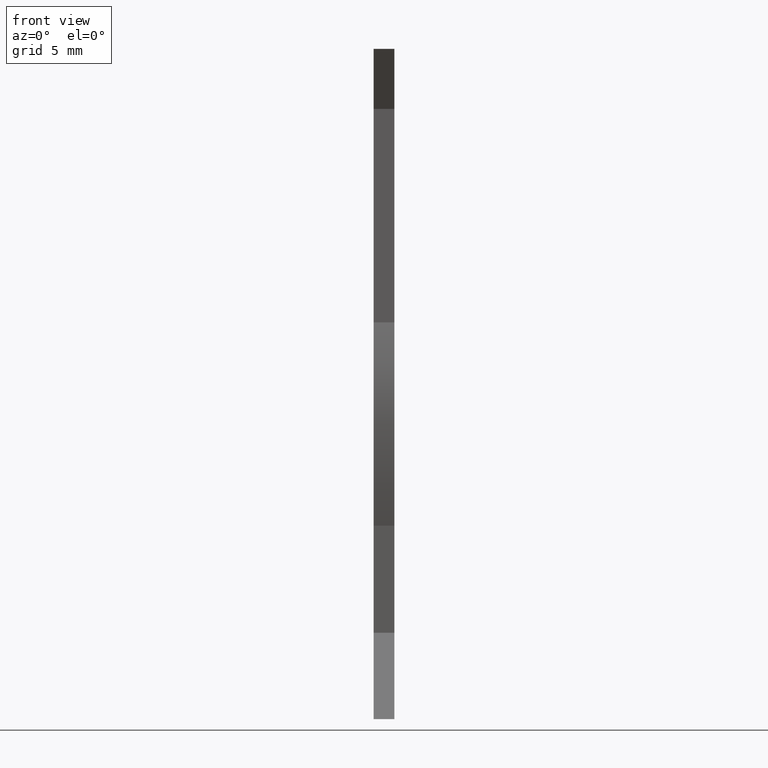
[diagram: clean part render]
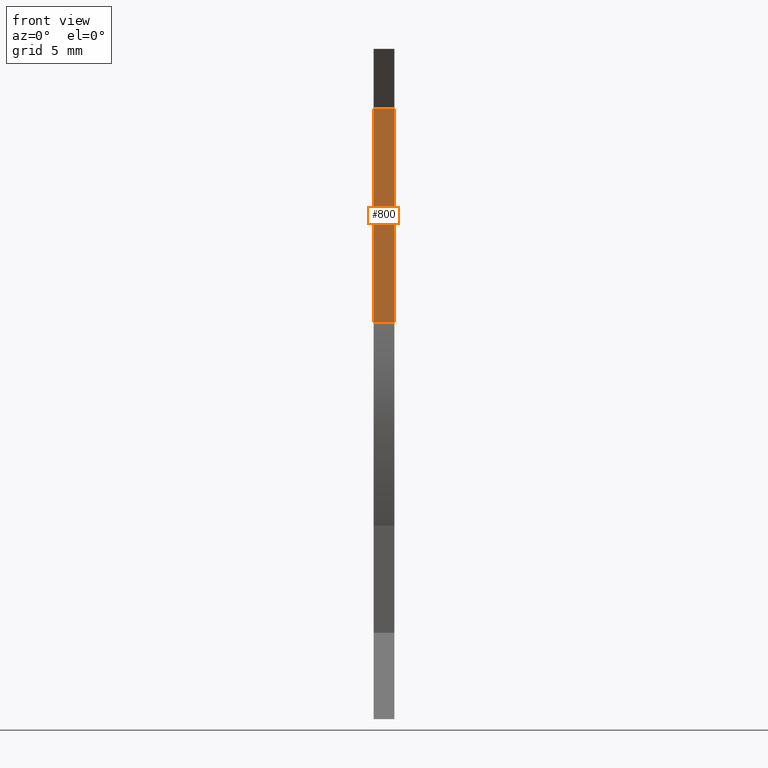
[diagram: same view with one face highlighted and labeled with its STEP entity id]
A machine part, front view. The second image highlights one B-rep face of the part: STEP entity #800.
In plain terms, the highlighted planar face has unit normal (0, -1, 0).
Its self-contained STEP definition (entity closure, byte-faithful):
#110=CARTESIAN_POINT('',(26.3821672216756,-22.3107957574434,54.17));
#120=VERTEX_POINT('',#110);
#300=CARTESIAN_POINT('',(26.3821672216756,-22.3107957574434,53.17));
#310=VERTEX_POINT('',#300);
#340=CARTESIAN_POINT('',(26.3821672216756,-22.3107957574434,50.9699976))
;
#350=DIRECTION('',(0.,0.,1.));
#360=VECTOR('',#350,1.);
#370=LINE('',#340,#360);
#380=EDGE_CURVE('',#310,#120,#370,.T.);
#500=CARTESIAN_POINT('',(26.3821672216756,-16.6907571511978,
53.6251825304374));
#510=DIRECTION('',(-1.,0.,0.));
#520=DIRECTION('',(0.,-1.,0.));
#530=AXIS2_PLACEMENT_3D('',#500,#510,#520);
#540=PLANE('',#530);
#550=CARTESIAN_POINT('',(26.3821672216756,-12.0389416166838,53.17));
#560=DIRECTION('',(0.,0.,1.));
#570=VECTOR('',#560,1.);
#580=LINE('',#550,#570);
#590=CARTESIAN_POINT('',(26.3821672216756,-12.0389416166838,53.17));
#600=VERTEX_POINT('',#590);
#610=CARTESIAN_POINT('',(26.3821672216756,-12.0389416166838,54.17));
#620=VERTEX_POINT('',#610);
#630=EDGE_CURVE('',#600,#620,#580,.T.);
#640=ORIENTED_EDGE('',*,*,#630,.F.);
#650=CARTESIAN_POINT('',(26.3821672216756,-12.1300507694265,54.17));
#660=DIRECTION('',(0.,1.,0.));
#670=VECTOR('',#660,1.);
#680=LINE('',#650,#670);
#690=EDGE_CURVE('',#120,#620,#680,.T.);
#700=ORIENTED_EDGE('',*,*,#690,.T.);
#710=ORIENTED_EDGE('',*,*,#380,.T.);
#720=CARTESIAN_POINT('',(26.3821672216756,-12.1300507694265,53.17));
#730=DIRECTION('',(0.,1.,0.));
#740=VECTOR('',#730,1.);
#750=LINE('',#720,#740);
#760=EDGE_CURVE('',#310,#600,#750,.T.);
#770=ORIENTED_EDGE('',*,*,#760,.F.);
#780=EDGE_LOOP('',(#770,#710,#700,#640));
#790=FACE_OUTER_BOUND('',#780,.T.);
#800=ADVANCED_FACE('',(#790),#540,.T.);